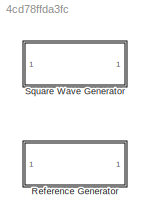
MODEL slx_4cd78ffda3fc
KIND model
CONFIG AbsTol = auto
CONFIG EnableMultiTasking = off
CONFIG FixedStep = auto
CONFIG MaxStep = auto
CONFIG MinStep = auto
CONFIG RelTol = 1e-3
CONFIG SampleTimeConstraint = Unconstrained
CONFIG SolverName = VariableStepAuto
CONFIG StartTime = 0.0
CONFIG StopTime = 10.0
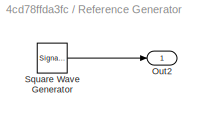
BLOCK [SubSystem] Reference Generator
BLOCK [Outport] Reference Generator/Out2
BLOCK [SignalGenerator] Reference Generator/Square Wave Generator
  Amplitude = wave_amplitude
  Frequency = 1 / wave_period
  WaveForm = square
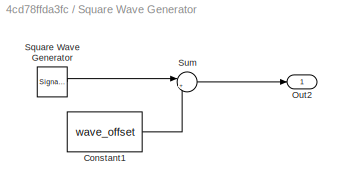
BLOCK [SubSystem] Square Wave Generator
BLOCK [Constant] Square Wave Generator/Constant1
  Value = wave_offset
BLOCK [Outport] Square Wave Generator/Out2
BLOCK [SignalGenerator] Square Wave Generator/Square Wave Generator
  Amplitude = wave_amplitude
  Frequency = 1 / wave_period
  WaveForm = square
BLOCK [Sum] Square Wave Generator/Sum
  Inputs = |++
LINE Reference Generator/Square Wave Generator:1 -> Reference Generator/Out2:1
LINE Square Wave Generator/Constant1:1 -> Square Wave Generator/Sum:2
LINE Square Wave Generator/Square Wave Generator:1 -> Square Wave Generator/Sum:1
LINE Square Wave Generator/Sum:1 -> Square Wave Generator/Out2:1
